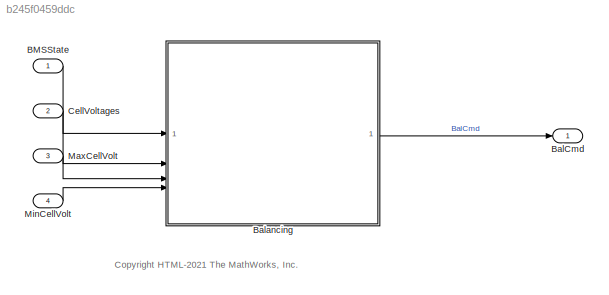
MODEL slx_b245f0459ddc
KIND model
CONFIG AbsTol = auto
CONFIG EnableMultiTasking = off
CONFIG FixedStep = auto
CONFIG MaxStep = auto
CONFIG MinStep = auto
CONFIG RelTol = 1e-3
CONFIG SampleTimeConstraint = Unconstrained
CONFIG SolverName = FixedStepDiscrete
CONFIG StartTime = 0.0
CONFIG StopTime = 10000
WORKSPACE source: mxarray member
WORKSPACE BalNotActWait = 30
WORKSPACE BalOffWait = 20
WORKSPACE BalOnWait = 60
WORKSPACE TargetDeltaV = 0.00999999977648
WORKSPACE flgEnBalancing = 1
BLOCK [Inport] BMSState
  PortDimensions = 1
  SampleTime = [5,0]
  SamplingMode = Sample based
  SignalType = real
BLOCK [Outport] BalCmd
  OutDataTypeStr = boolean
  PortDimensions = [1,PlntBattModNumCellSer*PlntBattNumMod]
  SampleTime = [5,0]
  SamplingMode = Sample based
  SignalType = real
  VectorParamsAs1DForOutWhenUnconnected = off
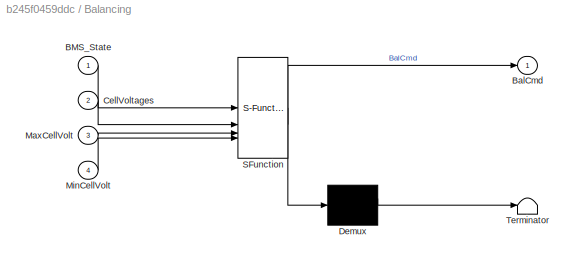
BLOCK [SubSystem] Balancing
  ErrorFcn = Stateflow.Translate.translate
  PermitHierarchicalResolution = ExplicitOnly
  SFBlockType = Chart
  TreatAsAtomicUnit = on
  VariantControl = (default)
BLOCK [Demux] Balancing/ Demux 
  Outputs = 1
BLOCK [S-Function] Balancing/ SFunction 
  EnableBusSupport = off
  FunctionName = sf_sfun
  Parameters = BalNotActWait,BalOffWait,BalOnWait,TargetDeltaV,flgEnBalancing
  PortCounts = [4 2]
  SFcnIsStateOwnerBlock = off
  SFunctionDeploymentMode = off
  Tag = Stateflow S-Function 1
BLOCK [Terminator] Balancing/ Terminator 
BLOCK [Inport] Balancing/BMS_State
BLOCK [Outport] Balancing/BalCmd
  VectorParamsAs1DForOutWhenUnconnected = off
BLOCK [Inport] Balancing/CellVoltages
  Port = 2
BLOCK [Inport] Balancing/MaxCellVolt
  Port = 3
BLOCK [Inport] Balancing/MinCellVolt
  Port = 4
BLOCK [Inport] CellVoltages
  OutDataTypeStr = single
  Port = 2
  PortDimensions = PlntBattModNumCellSer*PlntBattNumMod
  SampleTime = [5,0]
  SamplingMode = Sample based
  SignalType = real
BLOCK [Inport] MaxCellVolt
  Port = 3
BLOCK [Inport] MinCellVolt
  Port = 4
ANNOTATION (root): <copyright redacted>
LINE BMSState:1 -> Balancing:1
LINE Balancing:1 -> BalCmd:1
LINE CellVoltages:1 -> Balancing:2
LINE MaxCellVolt:1 -> Balancing:3
LINE MinCellVolt:1 -> Balancing:4
CHART Balancing states=4 transitions=7
  STATE_LABEL 'BalancingOFF\nen:\nBalCmd(:,:) = false;\nen,du:\nDeltaCellVolt = MaxCellVolt - MinCellVolt;'
  STATE_LABEL 'BalancingON\nen, du:\nDeltaCellVolt = MaxCellVolt - MinCellVolt;\n'
  STATE_LABEL "BalActive\nen, du:\nBalCmd = ((CellVoltages - MinCellVolt) > TargetDeltaV/2)';\nflgBalCompl = all(~BalCmd);"
  STATE_LABEL 'BalNotActive'
  STATE_LABEL '[after(BalNotActWait,sec) && ...\nDeltaCellVolt > TargetDeltaV]'
  STATE_LABEL '[flgBalCompl]'
  STATE_LABEL "BalActive\nen, du:\nBalCmd = ((CellVoltages - MinCellVolt) > TargetDeltaV/2)';\nflgBalCompl = all(~BalCmd);"
  STATE_LABEL 'BalNotActive'
CHART  states=0 transitions=0
